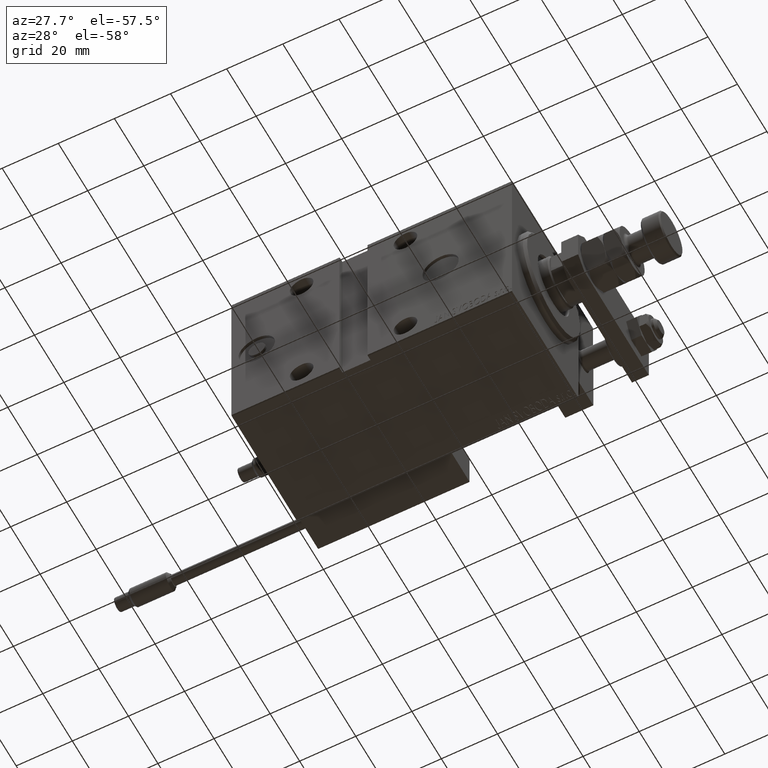
[diagram: clean part render]
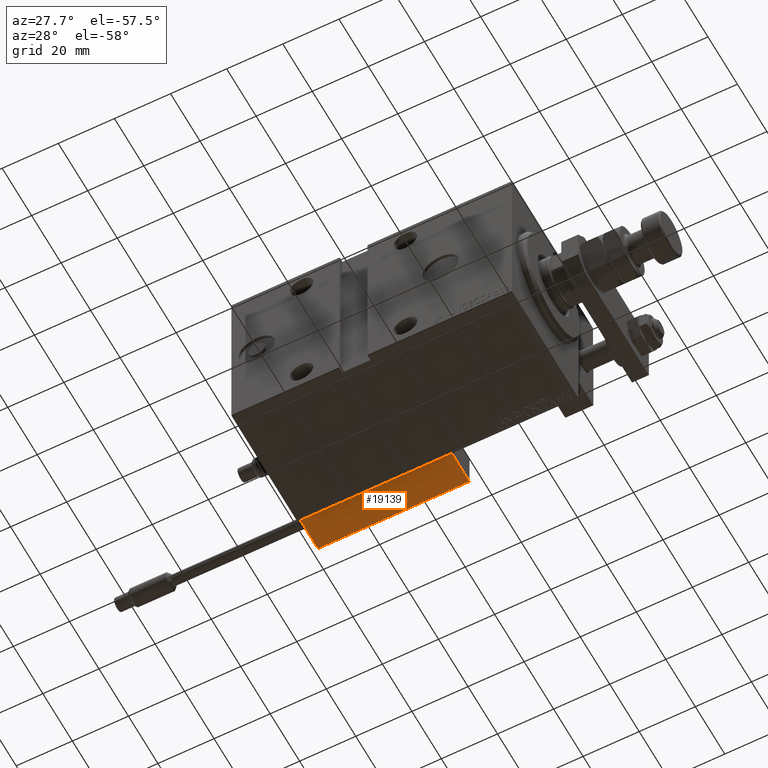
[diagram: same view with one face highlighted and labeled with its STEP entity id]
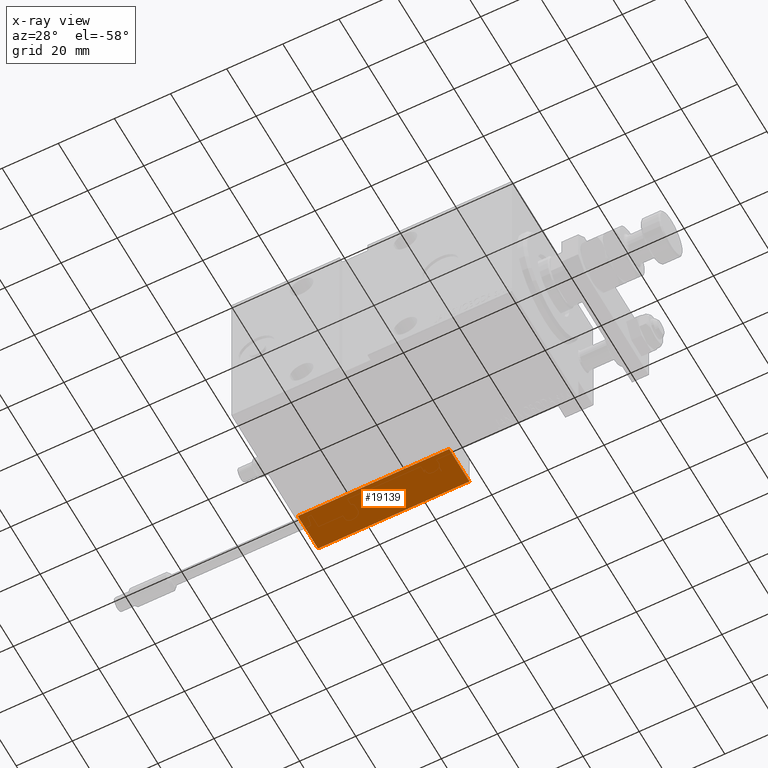
[diagram: x-ray of the same camera — body ghosted, the highlighted face saturated]
A machine part, auxiliary view. The second image highlights one B-rep face of the part: STEP entity #19139.
The next image is the same camera in x-ray: the body ghosted, the highlighted face saturated — about 0% of this face is hidden behind the body in this view.
In plain terms, the highlighted planar face has unit normal (-0, -0, 1).
Its self-contained STEP definition (entity closure, byte-faithful):
#1201 = VERTEX_POINT ( 'NONE', #25575 ) ;
#2217 = CARTESIAN_POINT ( 'NONE',  ( -26.99999999999993605, 20.00000000000002132, 14.00000000000000000 ) ) ;
#3017 = CARTESIAN_POINT ( 'NONE',  ( 27.00000000000006395, 20.00000000000001776, 13.70000000000000107 ) ) ;
#8112 = CARTESIAN_POINT ( 'NONE',  ( -26.99999999999993605, 20.00000000000002132, 13.70000000000000107 ) ) ;
#9059 = EDGE_CURVE ( 'NONE', #1201, #48164, #39069, .T. ) ;
#9459 = EDGE_CURVE ( 'NONE', #50634, #1201, #45710, .T. ) ;
#11279 = DIRECTION ( 'NONE',  ( 1.000000000000000000, -6.424901762877063495E-17, 0.000000000000000000 ) ) ;
#11542 = CARTESIAN_POINT ( 'NONE',  ( 27.00000000000006395, 20.00000000000001776, 14.00000000000000000 ) ) ;
#12672 = EDGE_CURVE ( 'NONE', #48457, #50634, #23181, .T. ) ;
#14001 = VECTOR ( 'NONE', #26757, 1000.000000000000000 ) ;
#14270 = LINE ( 'NONE', #2217, #16401 ) ;
#15920 = CARTESIAN_POINT ( 'NONE',  ( 27.00000000000006395, 20.00000000000001776, 14.00000000000000000 ) ) ;
#16401 = VECTOR ( 'NONE', #22140, 1000.000000000000000 ) ;
#18992 = DIRECTION ( 'NONE',  ( 1.000000000000000000, -6.424901762877063495E-17, -0.000000000000000000 ) ) ;
#19139 = ADVANCED_FACE ( 'NONE', ( #47184 ), #43264, .F. ) ;
#21611 = DIRECTION ( 'NONE',  ( -0.000000000000000000, -0.000000000000000000, -1.000000000000000000 ) ) ;
#22140 = DIRECTION ( 'NONE',  ( -0.000000000000000000, -0.000000000000000000, -1.000000000000000000 ) ) ;
#23181 = LINE ( 'NONE', #3017, #40948 ) ;
#25575 = CARTESIAN_POINT ( 'NONE',  ( 27.00000000000006395, 20.00000000000001776, 0.000000000000000000 ) ) ;
#26757 = DIRECTION ( 'NONE',  ( -1.000000000000000000, 6.424901762877062263E-17, 0.000000000000000000 ) ) ;
#29673 = CARTESIAN_POINT ( 'NONE',  ( -26.99999999999993605, 20.00000000000002132, 0.000000000000000000 ) ) ;
#31198 = CARTESIAN_POINT ( 'NONE',  ( 27.00000000000006395, 20.00000000000001776, 0.000000000000000000 ) ) ;
#35696 = EDGE_CURVE ( 'NONE', #48457, #48164, #14270, .T. ) ;
#38184 = ORIENTED_EDGE ( 'NONE', *, *, #9059, .T. ) ;
#39069 = LINE ( 'NONE', #31198, #14001 ) ;
#39358 = EDGE_LOOP ( 'NONE', ( #45590, #41559, #41510, #38184 ) ) ;
#40948 = VECTOR ( 'NONE', #18992, 1000.000000000000000 ) ;
#41510 = ORIENTED_EDGE ( 'NONE', *, *, #9459, .T. ) ;
#41559 = ORIENTED_EDGE ( 'NONE', *, *, #12672, .T. ) ;
#42499 = CARTESIAN_POINT ( 'NONE',  ( 27.00000000000006395, 20.00000000000001776, 13.70000000000000107 ) ) ;
#43264 = PLANE ( 'NONE',  #44506 ) ;
#43289 = VECTOR ( 'NONE', #21611, 1000.000000000000000 ) ;
#44506 = AXIS2_PLACEMENT_3D ( 'NONE', #11542, #50604, #11279 ) ;
#45590 = ORIENTED_EDGE ( 'NONE', *, *, #35696, .F. ) ;
#45710 = LINE ( 'NONE', #15920, #43289 ) ;
#47184 = FACE_OUTER_BOUND ( 'NONE', #39358, .T. ) ;
#48164 = VERTEX_POINT ( 'NONE', #29673 ) ;
#48457 = VERTEX_POINT ( 'NONE', #8112 ) ;
#50604 = DIRECTION ( 'NONE',  ( -6.424901762877063495E-17, -1.000000000000000000, 0.000000000000000000 ) ) ;
#50634 = VERTEX_POINT ( 'NONE', #42499 ) ;